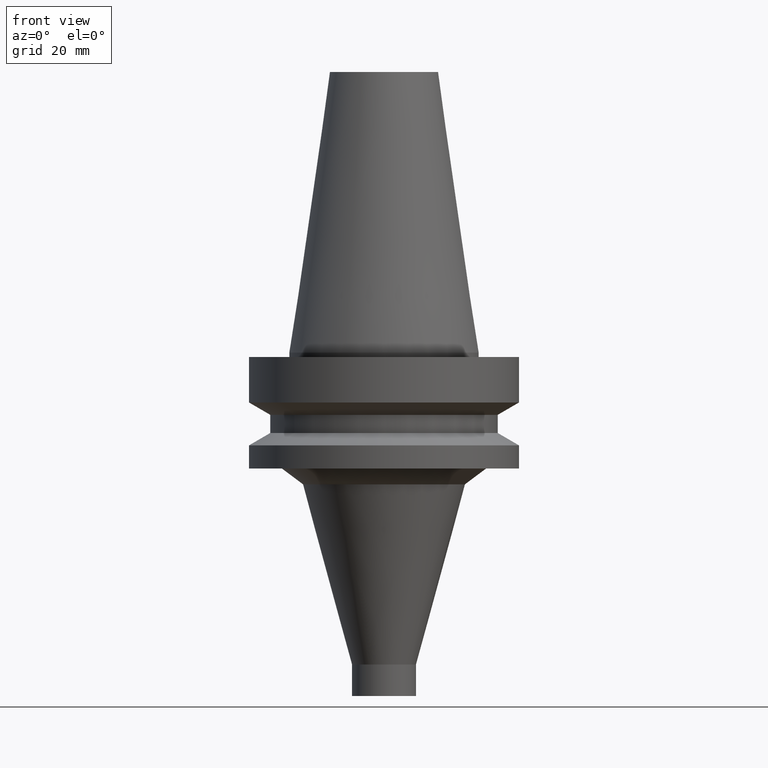
[diagram: clean part render]
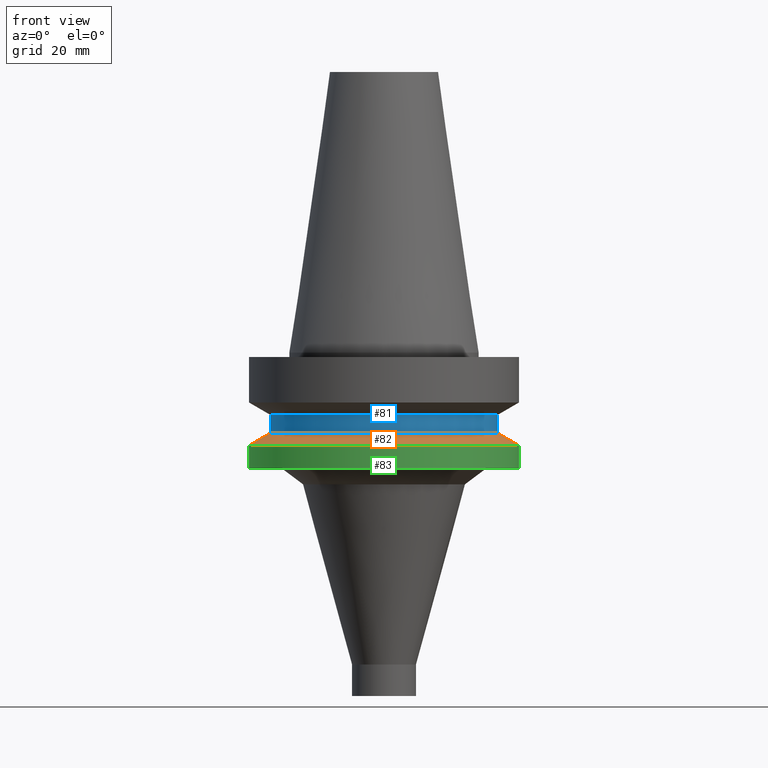
[diagram: same view with three faces highlighted in distinct colors, each labeled with its STEP entity id]
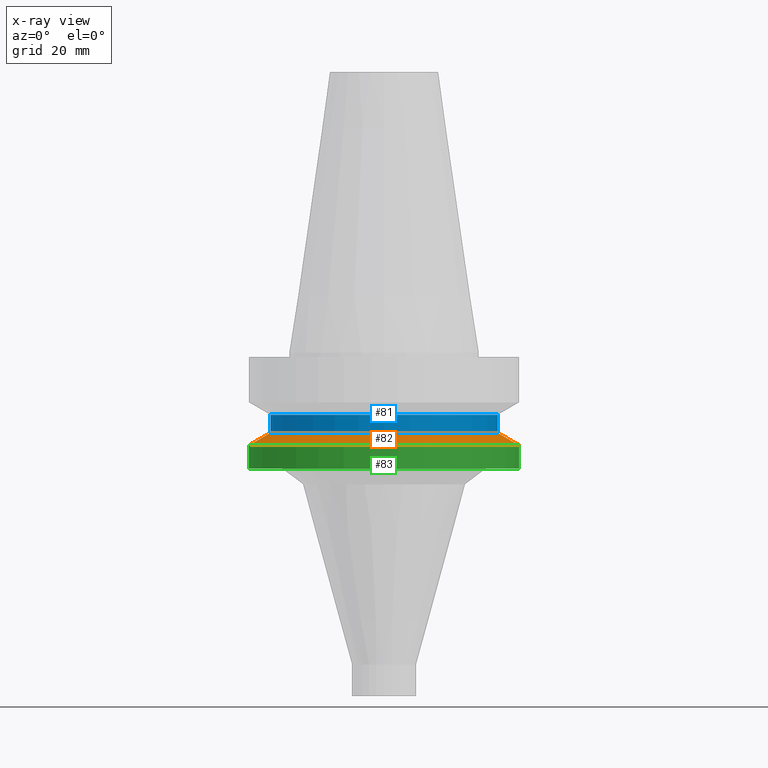
[diagram: x-ray of the same camera — body ghosted, the three highlighted faces saturated]
A machine part, front view with three faces highlighted in distinct colors.
The next image is the same camera in x-ray (body ghosted, the three faces saturated) — at least one of them is partly hidden behind the body in this view.
Their STEP definitions:

[orange] entity #82 — the highlighted conical surface has half-angle 60 deg.
#82=ADVANCED_FACE('',(#110,#111),#112,.T.);
#110=FACE_BOUND('',#150,.T.);
#111=FACE_BOUND('',#151,.T.);
#112=CONICAL_SURFACE('',#152,29.0,1.04719755058882);
#150=EDGE_LOOP('',(#204));
#151=EDGE_LOOP('',(#205));
#152=AXIS2_PLACEMENT_3D('',#206,#207,#208);
#204=ORIENTED_EDGE('',*,*,#245,.F.);
#205=ORIENTED_EDGE('',*,*,#244,.T.);
#206=CARTESIAN_POINT('',(1.23423727306135E-015,2.46847454612269E-015,-20.156624325));
#207=DIRECTION('',(6.12323399573677E-017,1.22464679914735E-016,-1.0));
#208=DIRECTION('',(-1.23259516440783E-032,1.0,1.22464679914735E-016));
#244=EDGE_CURVE('',#263,#263,#264,.T.);
#245=EDGE_CURVE('',#265,#265,#266,.T.);
#263=VERTEX_POINT('',#289);
#264=CIRCLE('',#290,26.5);
#265=VERTEX_POINT('',#291);
#266=CIRCLE('',#292,31.5);
#289=CARTESIAN_POINT('',(1.14585600304355E-015,26.5,-18.71324865));
#290=AXIS2_PLACEMENT_3D('',#321,#322,#323);
#291=CARTESIAN_POINT('',(1.32261854307914E-015,31.5,-21.6));
#292=AXIS2_PLACEMENT_3D('',#324,#325,#326);
#321=CARTESIAN_POINT('',(1.14585600304355E-015,2.2917120060871E-015,-18.71324865));
#322=DIRECTION('',(6.12323399573677E-017,1.22464679914735E-016,-1.0));
#323=DIRECTION('',(-1.23259516440783E-032,1.0,1.22464679914735E-016));
#324=CARTESIAN_POINT('',(1.32261854307914E-015,2.64523708615828E-015,-21.6));
#325=DIRECTION('',(6.12323399573677E-017,1.22464679914735E-016,-1.0));
#326=DIRECTION('',(-1.23259516440783E-032,1.0,1.22464679914735E-016));

[blue] entity #81 — the highlighted cylindrical surface (bore or boss wall) has radius 26.5 mm, axis along (-0, -0, 1).
#81=ADVANCED_FACE('',(#107,#108),#109,.T.);
#107=FACE_BOUND('',#147,.T.);
#108=FACE_BOUND('',#148,.T.);
#109=CYLINDRICAL_SURFACE('',#149,26.5);
#147=EDGE_LOOP('',(#199));
#148=EDGE_LOOP('',(#200));
#149=AXIS2_PLACEMENT_3D('',#201,#202,#203);
#199=ORIENTED_EDGE('',*,*,#244,.F.);
#200=ORIENTED_EDGE('',*,*,#243,.T.);
#201=CARTESIAN_POINT('',(1.0164568432923E-015,2.03291368658461E-015,-16.6));
#202=DIRECTION('',(-6.12323399573677E-017,-1.22464679914735E-016,1.0));
#203=DIRECTION('',(-1.23259516440783E-032,1.0,1.22464679914735E-016));
#243=EDGE_CURVE('',#261,#261,#262,.T.);
#244=EDGE_CURVE('',#263,#263,#264,.T.);
#261=VERTEX_POINT('',#287);
#262=CIRCLE('',#288,26.5);
#263=VERTEX_POINT('',#289);
#264=CIRCLE('',#290,26.5);
#287=CARTESIAN_POINT('',(8.87057683541055E-016,26.5,-14.48675135));
#288=AXIS2_PLACEMENT_3D('',#318,#319,#320);
#289=CARTESIAN_POINT('',(1.14585600304355E-015,26.5,-18.71324865));
#290=AXIS2_PLACEMENT_3D('',#321,#322,#323);
#318=CARTESIAN_POINT('',(8.87057683541055E-016,1.77411536708211E-015,-14.48675135));
#319=DIRECTION('',(6.12323399573677E-017,1.22464679914735E-016,-1.0));
#320=DIRECTION('',(-1.23259516440783E-032,1.0,1.22464679914735E-016));
#321=CARTESIAN_POINT('',(1.14585600304355E-015,2.2917120060871E-015,-18.71324865));
#322=DIRECTION('',(6.12323399573677E-017,1.22464679914735E-016,-1.0));
#323=DIRECTION('',(-1.23259516440783E-032,1.0,1.22464679914735E-016));

[green] entity #83 — the highlighted cylindrical surface (bore or boss wall) has radius 31.5 mm, axis along (-0, -0, 1).
#83=ADVANCED_FACE('',(#113,#114),#115,.T.);
#113=FACE_BOUND('',#153,.T.);
#114=FACE_BOUND('',#154,.T.);
#115=CYLINDRICAL_SURFACE('',#155,31.5);
#153=EDGE_LOOP('',(#209));
#154=EDGE_LOOP('',(#210));
#155=AXIS2_PLACEMENT_3D('',#211,#212,#213);
#209=ORIENTED_EDGE('',*,*,#246,.F.);
#210=ORIENTED_EDGE('',*,*,#245,.T.);
#211=CARTESIAN_POINT('',(1.48794586096403E-015,2.97589172192807E-015,-24.3));
#212=DIRECTION('',(-6.12323399573677E-017,-1.22464679914735E-016,1.0));
#213=DIRECTION('',(-1.23259516440783E-032,1.0,1.22464679914735E-016));
#245=EDGE_CURVE('',#265,#265,#266,.T.);
#246=EDGE_CURVE('',#267,#267,#268,.T.);
#265=VERTEX_POINT('',#291);
#266=CIRCLE('',#292,31.5);
#267=VERTEX_POINT('',#293);
#268=CIRCLE('',#294,31.5);
#291=CARTESIAN_POINT('',(1.32261854307914E-015,31.5,-21.6));
#292=AXIS2_PLACEMENT_3D('',#324,#325,#326);
#293=CARTESIAN_POINT('',(1.65327317884893E-015,31.5,-27.0));
#294=AXIS2_PLACEMENT_3D('',#327,#328,#329);
#324=CARTESIAN_POINT('',(1.32261854307914E-015,2.64523708615828E-015,-21.6));
#325=DIRECTION('',(6.12323399573677E-017,1.22464679914735E-016,-1.0));
#326=DIRECTION('',(-1.23259516440783E-032,1.0,1.22464679914735E-016));
#327=CARTESIAN_POINT('',(1.65327317884893E-015,3.30654635769785E-015,-27.0));
#328=DIRECTION('',(6.12323399573677E-017,1.22464679914735E-016,-1.0));
#329=DIRECTION('',(-1.23259516440783E-032,1.0,1.22464679914735E-016));